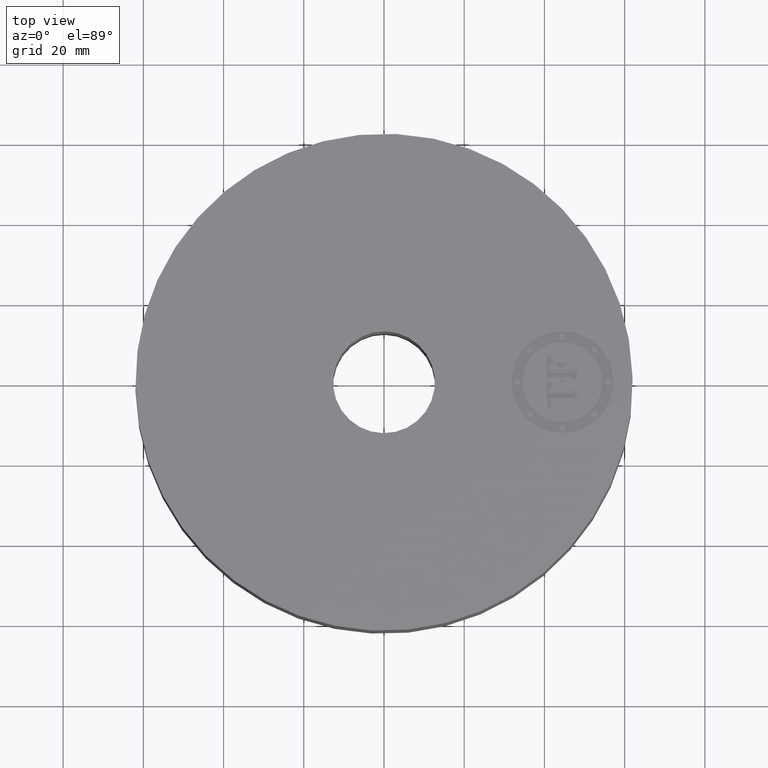
[diagram: clean part render]
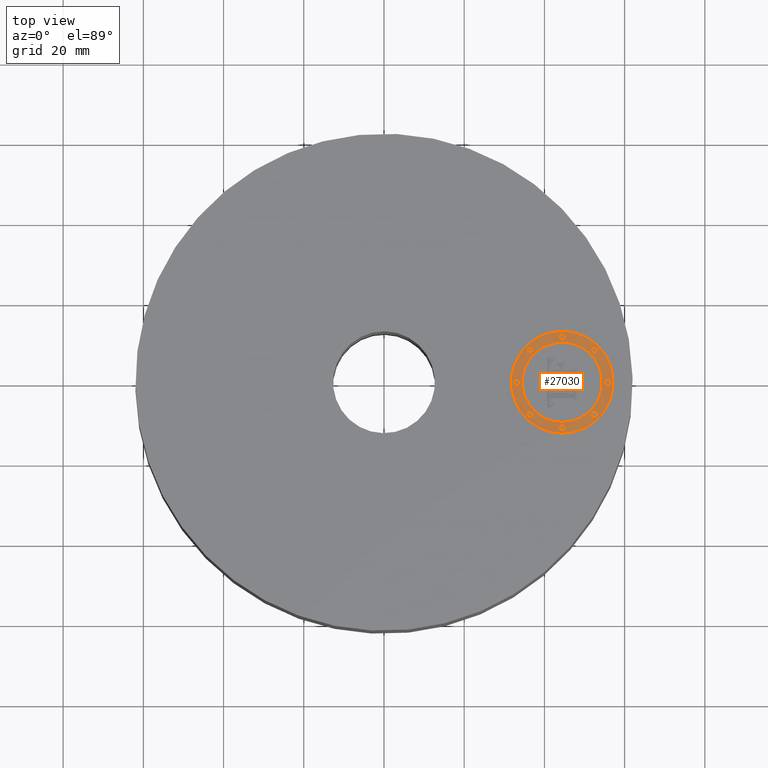
[diagram: same view with one face highlighted and labeled with its STEP entity id]
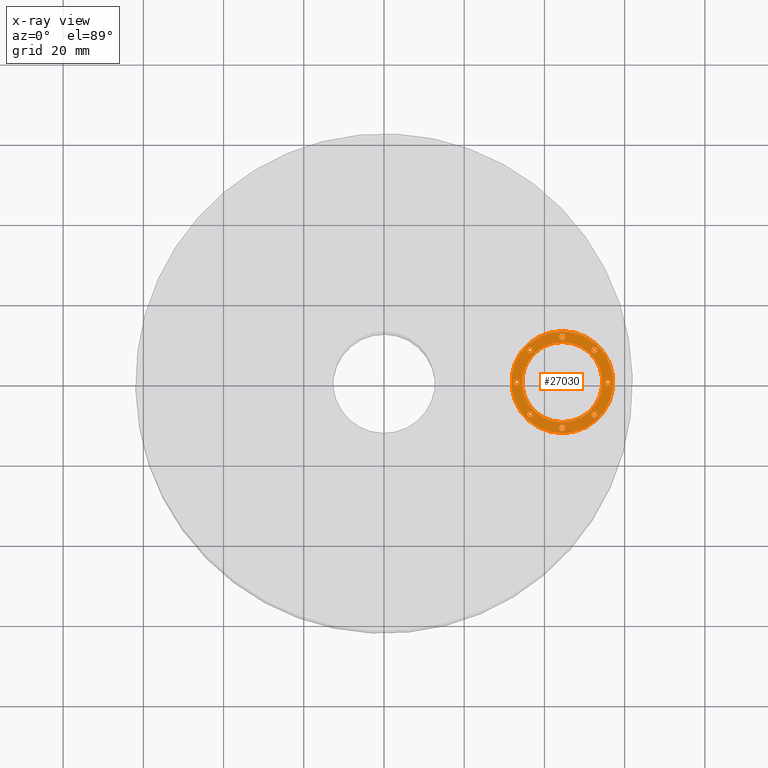
[diagram: x-ray of the same camera — body ghosted, the highlighted face saturated]
A machine part, top view. The second image highlights one B-rep face of the part: STEP entity #27030.
The next image is the same camera in x-ray: the body ghosted, the highlighted face saturated — about 0% of this face is hidden behind the body in this view.
In plain terms, the highlighted planar face has unit normal (0, 0, 1).
Its self-contained STEP definition (entity closure, byte-faithful):
#15677=AXIS2_PLACEMENT_3D('Plane Axis2P3D',#15674,#15675,#15676) ;
#26828=AXIS2_PLACEMENT_3D('Circle Axis2P3D',#26826,#26827,$) ;
#26847=AXIS2_PLACEMENT_3D('Circle Axis2P3D',#26845,#26846,$) ;
#26870=AXIS2_PLACEMENT_3D('Circle Axis2P3D',#26868,#26869,$) ;
#26879=AXIS2_PLACEMENT_3D('Circle Axis2P3D',#26877,#26878,$) ;
#26888=AXIS2_PLACEMENT_3D('Circle Axis2P3D',#26886,#26887,$) ;
#26897=AXIS2_PLACEMENT_3D('Circle Axis2P3D',#26895,#26896,$) ;
#26906=AXIS2_PLACEMENT_3D('Circle Axis2P3D',#26904,#26905,$) ;
#26915=AXIS2_PLACEMENT_3D('Circle Axis2P3D',#26913,#26914,$) ;
#26924=AXIS2_PLACEMENT_3D('Circle Axis2P3D',#26922,#26923,$) ;
#26933=AXIS2_PLACEMENT_3D('Circle Axis2P3D',#26931,#26932,$) ;
#26942=AXIS2_PLACEMENT_3D('Circle Axis2P3D',#26940,#26941,$) ;
#26951=AXIS2_PLACEMENT_3D('Circle Axis2P3D',#26949,#26950,$) ;
#26960=AXIS2_PLACEMENT_3D('Circle Axis2P3D',#26958,#26959,$) ;
#26969=AXIS2_PLACEMENT_3D('Circle Axis2P3D',#26967,#26968,$) ;
#26978=AXIS2_PLACEMENT_3D('Circle Axis2P3D',#26976,#26977,$) ;
#26987=AXIS2_PLACEMENT_3D('Circle Axis2P3D',#26985,#26986,$) ;
#26996=AXIS2_PLACEMENT_3D('Circle Axis2P3D',#26994,#26995,$) ;
#27005=AXIS2_PLACEMENT_3D('Circle Axis2P3D',#27003,#27004,$) ;
#27014=AXIS2_PLACEMENT_3D('Circle Axis2P3D',#27012,#27013,$) ;
#27023=AXIS2_PLACEMENT_3D('Circle Axis2P3D',#27021,#27022,$) ;
#15674=CARTESIAN_POINT('Axis2P3D Location',(0.,0.,1.73500000001)) ;
#26816=CARTESIAN_POINT('Vertex',(1.75000000001,0.499999995002,1.73500000001)) ;
#26823=CARTESIAN_POINT('Vertex',(1.75000000001,-0.499999995002,1.73500000001)) ;
#26826=CARTESIAN_POINT('Axis2P3D Location',(1.75000000001,0.,1.73500000001)) ;
#26845=CARTESIAN_POINT('Axis2P3D Location',(1.75000000001,0.,1.73500000001)) ;
#26868=CARTESIAN_POINT('Axis2P3D Location',(1.75000000001,0.,1.73500000001)) ;
#26872=CARTESIAN_POINT('Vertex',(1.75000000001,-0.393939390002,1.73500000001)) ;
#26874=CARTESIAN_POINT('Vertex',(1.75000000001,0.393939390002,1.73500000001)) ;
#26877=CARTESIAN_POINT('Axis2P3D Location',(1.75000000001,0.,1.73500000001)) ;
#26886=CARTESIAN_POINT('Axis2P3D Location',(1.30303030751,-1.27155105343E-015,1.73500000001)) ;
#26890=CARTESIAN_POINT('Vertex',(1.30303030751,-0.0303030300001,1.73500000001)) ;
#26892=CARTESIAN_POINT('Vertex',(1.30303030751,0.0303030300001,1.73500000001)) ;
#26895=CARTESIAN_POINT('Axis2P3D Location',(1.30303030751,-1.27155105343E-015,1.73500000001)) ;
#26904=CARTESIAN_POINT('Axis2P3D Location',(1.75000000001,0.446969692502,1.73500000001)) ;
#26908=CARTESIAN_POINT('Vertex',(1.75000000001,0.416666662502,1.73500000001)) ;
#26910=CARTESIAN_POINT('Vertex',(1.75000000001,0.477272722502,1.73500000001)) ;
#26913=CARTESIAN_POINT('Axis2P3D Location',(1.75000000001,0.446969692502,1.73500000001)) ;
#26922=CARTESIAN_POINT('Axis2P3D Location',(1.43394469945,0.316055300553,1.73500000001)) ;
#26926=CARTESIAN_POINT('Vertex',(1.43394469945,0.285752270553,1.73500000001)) ;
#26928=CARTESIAN_POINT('Vertex',(1.43394469945,0.346358330553,1.73500000001)) ;
#26931=CARTESIAN_POINT('Axis2P3D Location',(1.43394469945,0.316055300553,1.73500000001)) ;
#26940=CARTESIAN_POINT('Axis2P3D Location',(2.19696969251,1.17265263816E-014,1.73500000001)) ;
#26944=CARTESIAN_POINT('Vertex',(2.19696969251,-0.0303030300001,1.73500000001)) ;
#26946=CARTESIAN_POINT('Vertex',(2.19696969251,0.0303030300001,1.73500000001)) ;
#26949=CARTESIAN_POINT('Axis2P3D Location',(2.19696969251,1.17265263816E-014,1.73500000001)) ;
#26958=CARTESIAN_POINT('Axis2P3D Location',(2.06605530056,0.316055300553,1.73500000001)) ;
#26962=CARTESIAN_POINT('Vertex',(2.06605530056,0.285752270553,1.73500000001)) ;
#26964=CARTESIAN_POINT('Vertex',(2.06605530056,0.346358330553,1.73500000001)) ;
#26967=CARTESIAN_POINT('Axis2P3D Location',(2.06605530056,0.316055300553,1.73500000001)) ;
#26976=CARTESIAN_POINT('Axis2P3D Location',(1.75000000001,-0.446969692502,1.73500000001)) ;
#26980=CARTESIAN_POINT('Vertex',(1.75000000001,-0.416666662502,1.73500000001)) ;
#26982=CARTESIAN_POINT('Vertex',(1.75000000001,-0.477272722502,1.73500000001)) ;
#26985=CARTESIAN_POINT('Axis2P3D Location',(1.75000000001,-0.446969692502,1.73500000001)) ;
#26994=CARTESIAN_POINT('Axis2P3D Location',(1.43394469945,-0.316055300553,1.73500000001)) ;
#26998=CARTESIAN_POINT('Vertex',(1.43394469945,-0.285752270553,1.73500000001)) ;
#27000=CARTESIAN_POINT('Vertex',(1.43394469945,-0.346358330553,1.73500000001)) ;
#27003=CARTESIAN_POINT('Axis2P3D Location',(1.43394469945,-0.316055300553,1.73500000001)) ;
#27012=CARTESIAN_POINT('Axis2P3D Location',(2.06605530056,-0.316055300553,1.73500000001)) ;
#27016=CARTESIAN_POINT('Vertex',(2.06605530056,-0.285752270553,1.73500000001)) ;
#27018=CARTESIAN_POINT('Vertex',(2.06605530056,-0.346358330553,1.73500000001)) ;
#27021=CARTESIAN_POINT('Axis2P3D Location',(2.06605530056,-0.316055300553,1.73500000001)) ;
#15675=DIRECTION('Axis2P3D Direction',(0.,0.,0.0393700787402)) ;
#15676=DIRECTION('Axis2P3D XDirection',(0.0393700787402,0.,0.)) ;
#26827=DIRECTION('Axis2P3D Direction',(0.,0.,0.0393700787402)) ;
#26846=DIRECTION('Axis2P3D Direction',(0.,0.,0.0393700787402)) ;
#26869=DIRECTION('Axis2P3D Direction',(0.,0.,0.0393700787402)) ;
#26878=DIRECTION('Axis2P3D Direction',(0.,0.,0.0393700787402)) ;
#26887=DIRECTION('Axis2P3D Direction',(0.,0.,0.0393700787402)) ;
#26896=DIRECTION('Axis2P3D Direction',(0.,0.,0.0393700787402)) ;
#26905=DIRECTION('Axis2P3D Direction',(0.,0.,0.0393700787402)) ;
#26914=DIRECTION('Axis2P3D Direction',(0.,0.,0.0393700787402)) ;
#26923=DIRECTION('Axis2P3D Direction',(0.,0.,0.0393700787402)) ;
#26932=DIRECTION('Axis2P3D Direction',(0.,0.,0.0393700787402)) ;
#26941=DIRECTION('Axis2P3D Direction',(0.,0.,0.0393700787402)) ;
#26950=DIRECTION('Axis2P3D Direction',(0.,0.,0.0393700787402)) ;
#26959=DIRECTION('Axis2P3D Direction',(0.,0.,0.0393700787402)) ;
#26968=DIRECTION('Axis2P3D Direction',(0.,0.,0.0393700787402)) ;
#26977=DIRECTION('Axis2P3D Direction',(0.,0.,0.0393700787402)) ;
#26986=DIRECTION('Axis2P3D Direction',(0.,0.,0.0393700787402)) ;
#26995=DIRECTION('Axis2P3D Direction',(0.,0.,0.0393700787402)) ;
#27004=DIRECTION('Axis2P3D Direction',(0.,0.,0.0393700787402)) ;
#27013=DIRECTION('Axis2P3D Direction',(0.,0.,0.0393700787402)) ;
#27022=DIRECTION('Axis2P3D Direction',(0.,0.,0.0393700787402)) ;
#26865=ORIENTED_EDGE('',*,*,#26830,.T.) ;
#26866=ORIENTED_EDGE('',*,*,#26849,.T.) ;
#26883=ORIENTED_EDGE('',*,*,#26876,.F.) ;
#26884=ORIENTED_EDGE('',*,*,#26881,.F.) ;
#26901=ORIENTED_EDGE('',*,*,#26894,.F.) ;
#26902=ORIENTED_EDGE('',*,*,#26899,.F.) ;
#26919=ORIENTED_EDGE('',*,*,#26912,.F.) ;
#26920=ORIENTED_EDGE('',*,*,#26917,.F.) ;
#26937=ORIENTED_EDGE('',*,*,#26930,.F.) ;
#26938=ORIENTED_EDGE('',*,*,#26935,.F.) ;
#26955=ORIENTED_EDGE('',*,*,#26948,.F.) ;
#26956=ORIENTED_EDGE('',*,*,#26953,.F.) ;
#26973=ORIENTED_EDGE('',*,*,#26966,.F.) ;
#26974=ORIENTED_EDGE('',*,*,#26971,.F.) ;
#26991=ORIENTED_EDGE('',*,*,#26984,.F.) ;
#26992=ORIENTED_EDGE('',*,*,#26989,.F.) ;
#27009=ORIENTED_EDGE('',*,*,#27002,.F.) ;
#27010=ORIENTED_EDGE('',*,*,#27007,.F.) ;
#27027=ORIENTED_EDGE('',*,*,#27020,.F.) ;
#27028=ORIENTED_EDGE('',*,*,#27025,.F.) ;
#26885=FACE_BOUND('',#26882,.T.) ;
#26903=FACE_BOUND('',#26900,.T.) ;
#26921=FACE_BOUND('',#26918,.T.) ;
#26939=FACE_BOUND('',#26936,.T.) ;
#26957=FACE_BOUND('',#26954,.T.) ;
#26975=FACE_BOUND('',#26972,.T.) ;
#26993=FACE_BOUND('',#26990,.T.) ;
#27011=FACE_BOUND('',#27008,.T.) ;
#27029=FACE_BOUND('',#27026,.T.) ;
#27030=ADVANCED_FACE('PartBody',(#26867,#26885,#26903,#26921,#26939,#26957,#26975,#26993,#27011,#27029),#15678,.T.) ;
#26829=CIRCLE('generated circle',#26828,0.499999995002) ;
#26848=CIRCLE('generated circle',#26847,0.499999995002) ;
#26871=CIRCLE('generated circle',#26870,0.393939390002) ;
#26880=CIRCLE('generated circle',#26879,0.393939390002) ;
#26889=CIRCLE('generated circle',#26888,0.0303030300001) ;
#26898=CIRCLE('generated circle',#26897,0.0303030300001) ;
#26907=CIRCLE('generated circle',#26906,0.0303030300001) ;
#26916=CIRCLE('generated circle',#26915,0.0303030300001) ;
#26925=CIRCLE('generated circle',#26924,0.0303030300001) ;
#26934=CIRCLE('generated circle',#26933,0.0303030300001) ;
#26943=CIRCLE('generated circle',#26942,0.0303030300001) ;
#26952=CIRCLE('generated circle',#26951,0.0303030300001) ;
#26961=CIRCLE('generated circle',#26960,0.0303030300001) ;
#26970=CIRCLE('generated circle',#26969,0.0303030300001) ;
#26979=CIRCLE('generated circle',#26978,0.0303030300001) ;
#26988=CIRCLE('generated circle',#26987,0.0303030300001) ;
#26997=CIRCLE('generated circle',#26996,0.0303030300001) ;
#27006=CIRCLE('generated circle',#27005,0.0303030300001) ;
#27015=CIRCLE('generated circle',#27014,0.0303030300001) ;
#27024=CIRCLE('generated circle',#27023,0.0303030300001) ;
#26830=EDGE_CURVE('',#26817,#26824,#26829,.T.) ;
#26849=EDGE_CURVE('',#26824,#26817,#26848,.T.) ;
#26876=EDGE_CURVE('',#26873,#26875,#26871,.T.) ;
#26881=EDGE_CURVE('',#26875,#26873,#26880,.T.) ;
#26894=EDGE_CURVE('',#26891,#26893,#26889,.T.) ;
#26899=EDGE_CURVE('',#26893,#26891,#26898,.T.) ;
#26912=EDGE_CURVE('',#26909,#26911,#26907,.T.) ;
#26917=EDGE_CURVE('',#26911,#26909,#26916,.T.) ;
#26930=EDGE_CURVE('',#26927,#26929,#26925,.T.) ;
#26935=EDGE_CURVE('',#26929,#26927,#26934,.T.) ;
#26948=EDGE_CURVE('',#26945,#26947,#26943,.T.) ;
#26953=EDGE_CURVE('',#26947,#26945,#26952,.T.) ;
#26966=EDGE_CURVE('',#26963,#26965,#26961,.T.) ;
#26971=EDGE_CURVE('',#26965,#26963,#26970,.T.) ;
#26984=EDGE_CURVE('',#26981,#26983,#26979,.T.) ;
#26989=EDGE_CURVE('',#26983,#26981,#26988,.T.) ;
#27002=EDGE_CURVE('',#26999,#27001,#26997,.T.) ;
#27007=EDGE_CURVE('',#27001,#26999,#27006,.T.) ;
#27020=EDGE_CURVE('',#27017,#27019,#27015,.T.) ;
#27025=EDGE_CURVE('',#27019,#27017,#27024,.T.) ;
#26864=EDGE_LOOP('',(#26865,#26866)) ;
#26882=EDGE_LOOP('',(#26883,#26884)) ;
#26900=EDGE_LOOP('',(#26901,#26902)) ;
#26918=EDGE_LOOP('',(#26919,#26920)) ;
#26936=EDGE_LOOP('',(#26937,#26938)) ;
#26954=EDGE_LOOP('',(#26955,#26956)) ;
#26972=EDGE_LOOP('',(#26973,#26974)) ;
#26990=EDGE_LOOP('',(#26991,#26992)) ;
#27008=EDGE_LOOP('',(#27009,#27010)) ;
#27026=EDGE_LOOP('',(#27027,#27028)) ;
#26867=FACE_OUTER_BOUND('',#26864,.T.) ;
#15678=PLANE('',#15677) ;
#26817=VERTEX_POINT('',#26816) ;
#26824=VERTEX_POINT('',#26823) ;
#26873=VERTEX_POINT('',#26872) ;
#26875=VERTEX_POINT('',#26874) ;
#26891=VERTEX_POINT('',#26890) ;
#26893=VERTEX_POINT('',#26892) ;
#26909=VERTEX_POINT('',#26908) ;
#26911=VERTEX_POINT('',#26910) ;
#26927=VERTEX_POINT('',#26926) ;
#26929=VERTEX_POINT('',#26928) ;
#26945=VERTEX_POINT('',#26944) ;
#26947=VERTEX_POINT('',#26946) ;
#26963=VERTEX_POINT('',#26962) ;
#26965=VERTEX_POINT('',#26964) ;
#26981=VERTEX_POINT('',#26980) ;
#26983=VERTEX_POINT('',#26982) ;
#26999=VERTEX_POINT('',#26998) ;
#27001=VERTEX_POINT('',#27000) ;
#27017=VERTEX_POINT('',#27016) ;
#27019=VERTEX_POINT('',#27018) ;